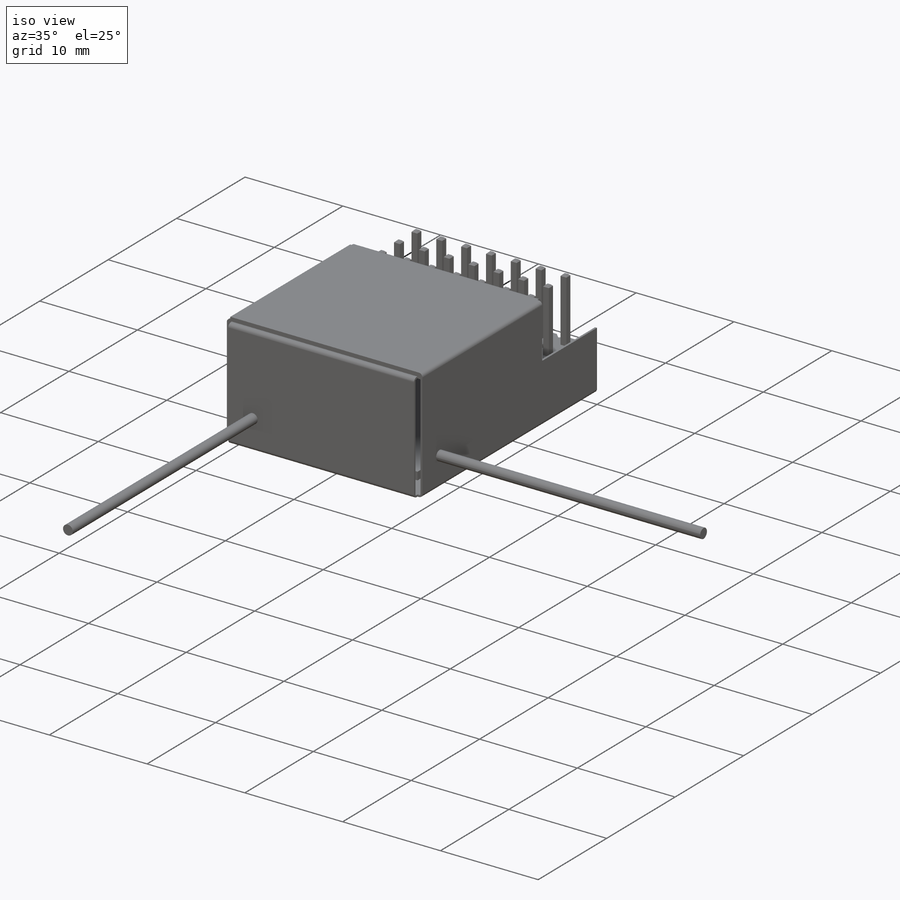
[diagram: iso view]
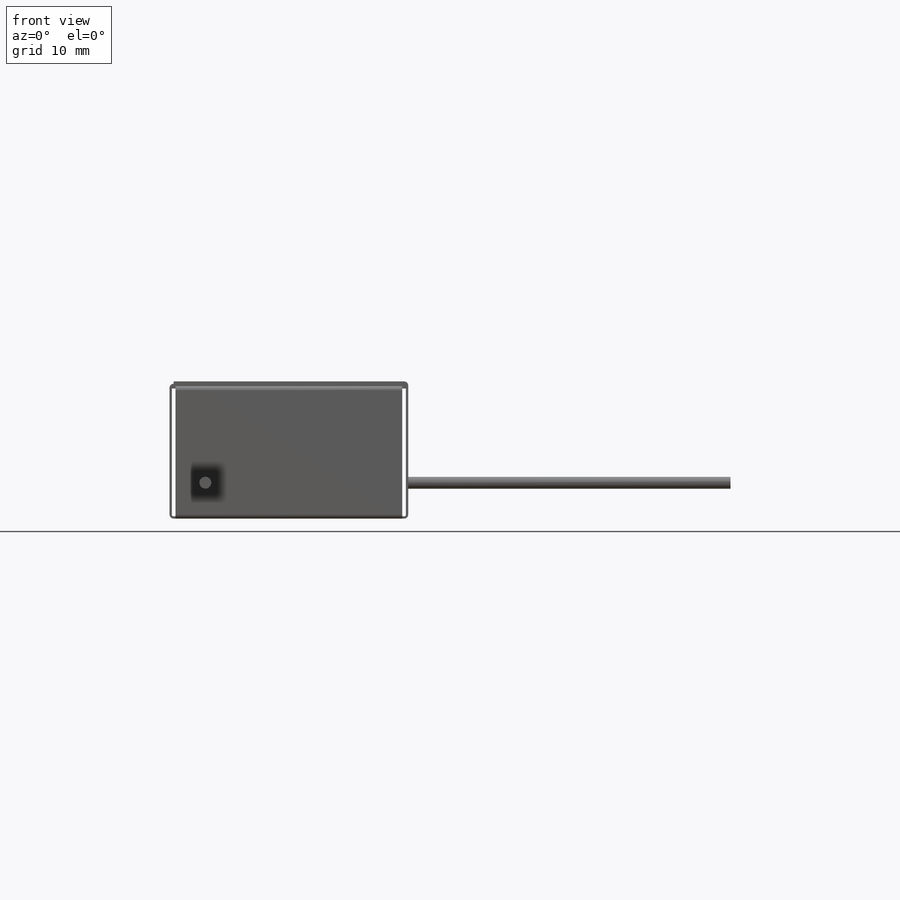
[diagram: front view]
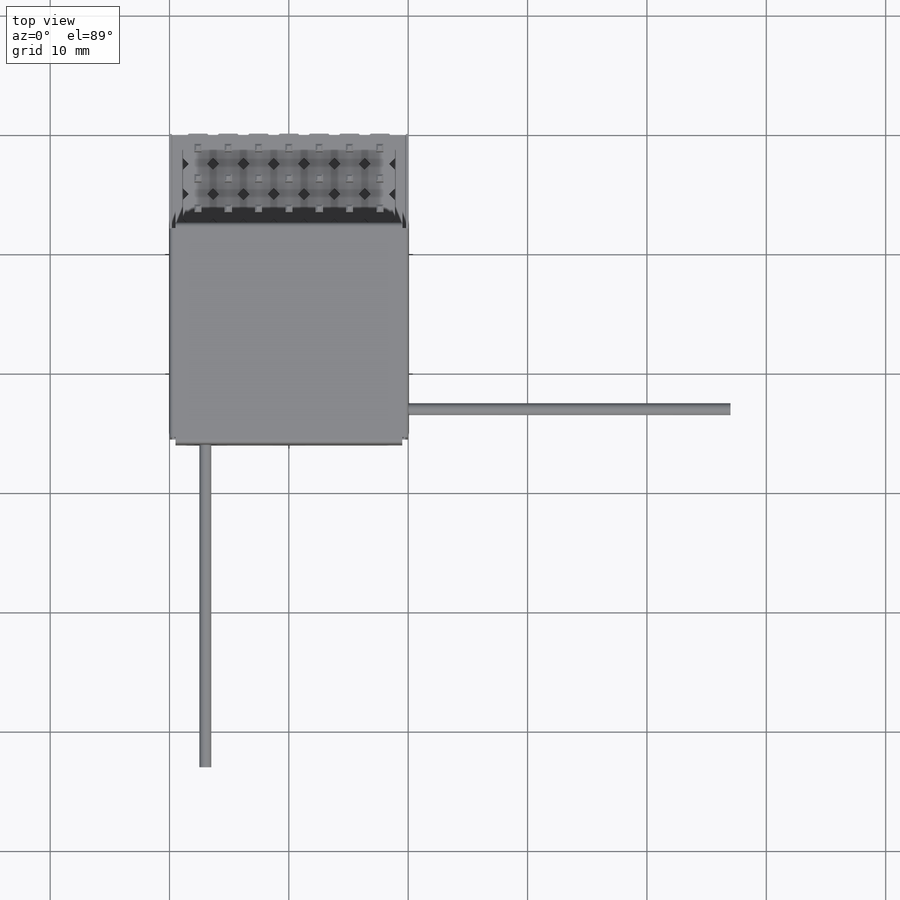
[diagram: top view]
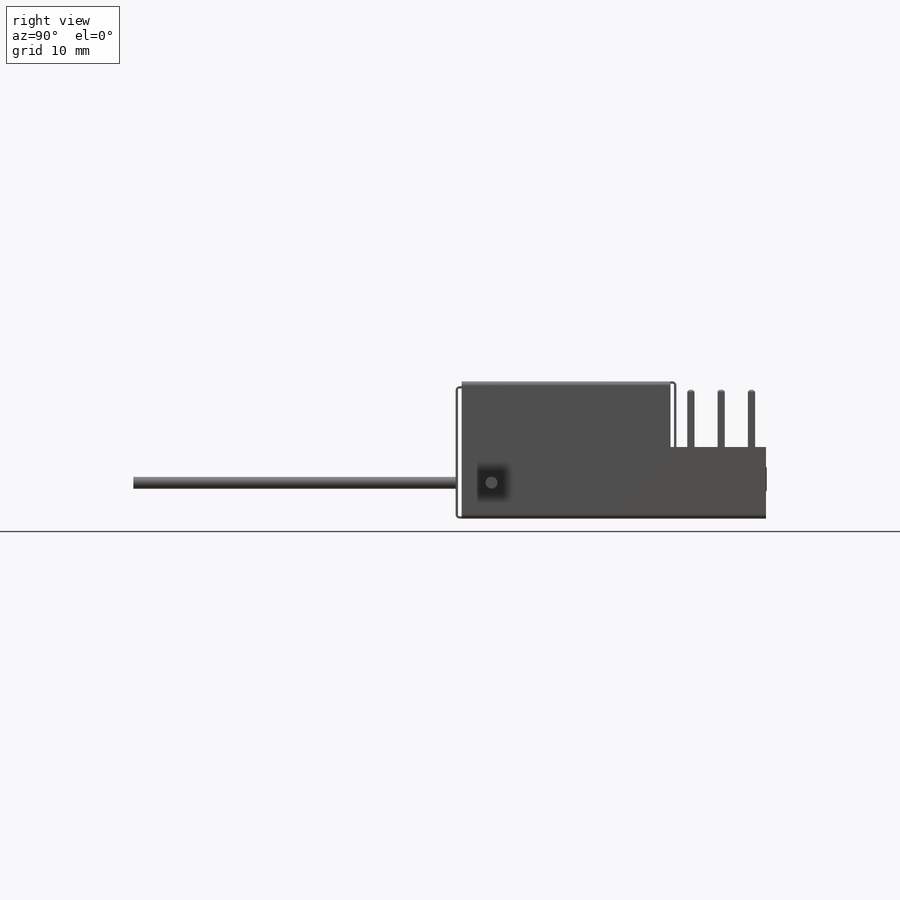
[diagram: right view]
SOLIDWORKS PART (.sldprt)
format: sldprt  version: not decoded by parser v0  size: 1,241,088 bytes
history: native  units: mm
features: sketch x13, extrude x9, cut_extrude x4, fillet x2, material x1, plane x1, chamfer x1 (+13 scaffold rows collapsed)
feature tree (44):
  scaffold x13  (default folders/planes/origin — collapsed)
  material  "Material <not specified>"
  sketch  "Sketch11"  dims[D1=0.2mm D2=0.2mm D3=0.2mm D4=0.4mm D5=20.0mm D6=11.5mm]
  extrude  "Boss-Extrude4"  Depth=25.5mm
  sketch  "Sketch12"  dims[D1=0.2mm D2=0.5mm D3=0.2mm D4=8.0mm]
  extrude  "Boss-Extrude5"  [1 undecoded]
  sketch  "Sketch13"  dims[D1=0.5mm D2=0.0mm]
  cut_extrude  "Cut-Extrude3"  [1 undecoded]
  sketch  "Sketch14"  dims[D1=0.35mm]
  cut_extrude  "Cut-Extrude4"  Depth=0.2mm
  sketch  "Sketch15"  dims[D1=8.0mm D2=6.0mm]
  cut_extrude  "Cut-Extrude5"  [1 undecoded]
  sketch  "Sketch16"  dims[D1=0.2mm D2=0.5mm D3=0.2mm]
  extrude  "Boss-Extrude9"  [1 undecoded]
  sketch  "Sketch17"
  cut_extrude  "Cut-Extrude6"  [1 undecoded]
  fillet  "Fillet3"  Radius=0.1mm
  fillet  "Fillet4"  Radius=0.35mm
  plane  "Plane4"  Offset=1.3mm
  sketch  "Sketch18"  dims[D1=0.5mm D2=0.5mm D3=0.5mm]
  extrude  "Boss-Extrude10"  Depth=0.8mm
  sketch  "Sketch19"  dims[D1=0.6mm D2=0.6mm D3=0.3mm D4=0.6mm D5=4.0 D6=2.0 D7=2.0 D8=4.0 D9=4.0]
  extrude  "Boss-Extrude11"  Depth=8.5mm
  sketch  "Sketch20"  dims[D1=2.54mm D2=1.27mm D3=1.27mm D4=1.27mm D5=7.0 D6=3.0]
  extrude  "Boss-Extrude12"  Depth=2mm
  sketch  "Sketch21"
  extrude  "Boss-Extrude13"  Depth=0.2mm
  sketch  "Sketch22"  dims[D1=1.0mm D2=3.0mm D3=3.0mm]
  extrude  "Boss-Extrude14"  Depth=27mm
  sketch  "Sketch23"  dims[D1=1.0mm D2=3.0mm D3=3.0mm]
  extrude  "Boss-Extrude15"  Depth=27mm
  chamfer  "Chamfer1"  Distance=0.15mm Angle=45deg
decode coverage: 22 of 29 modeling features carry decoded parameters
note: 5 parameter values undecoded
summary: no parameter record found for 5 features
note: suppression state not decoded; provenance and decode notes live in map.json
